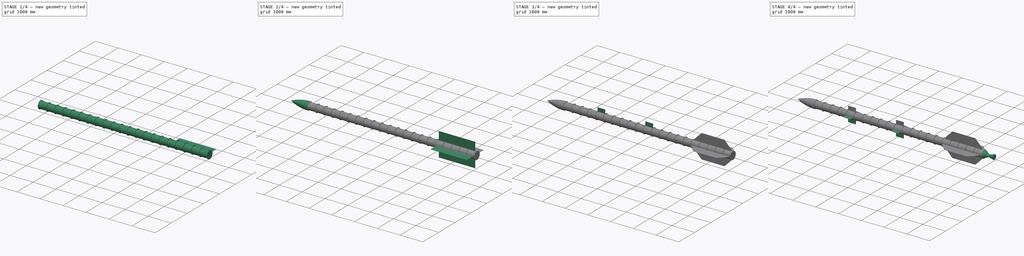
[diagram: build sequence overview — one tinted view per stage of 4, left to right]
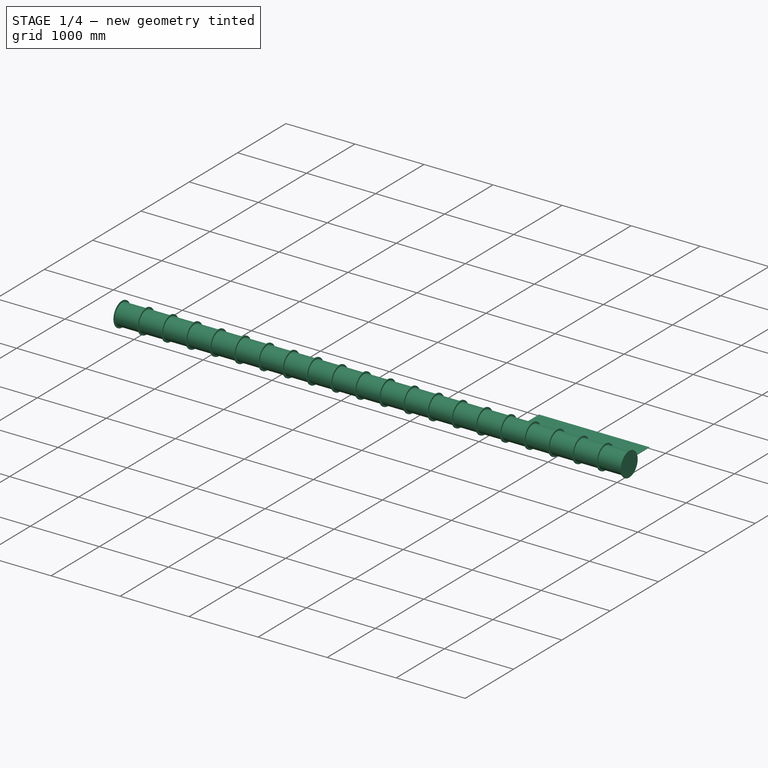
[diagram: stage 1 of 4 — iso view after this stage's code; geometry added in this stage tinted green]
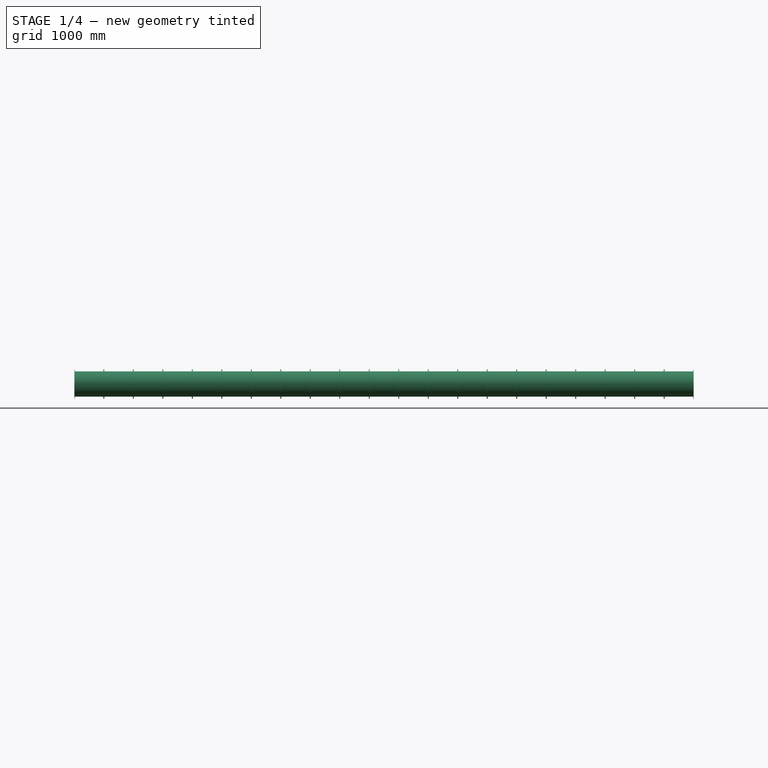
[diagram: stage 1 of 4 — front view after this stage's code; geometry added in this stage tinted green]
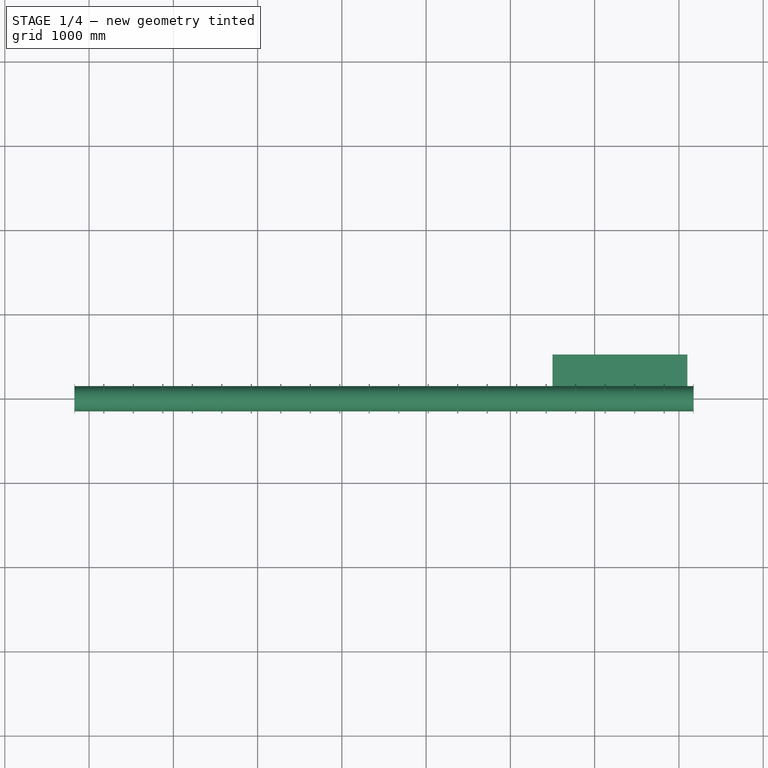
[diagram: stage 1 of 4 — top view after this stage's code; geometry added in this stage tinted green]
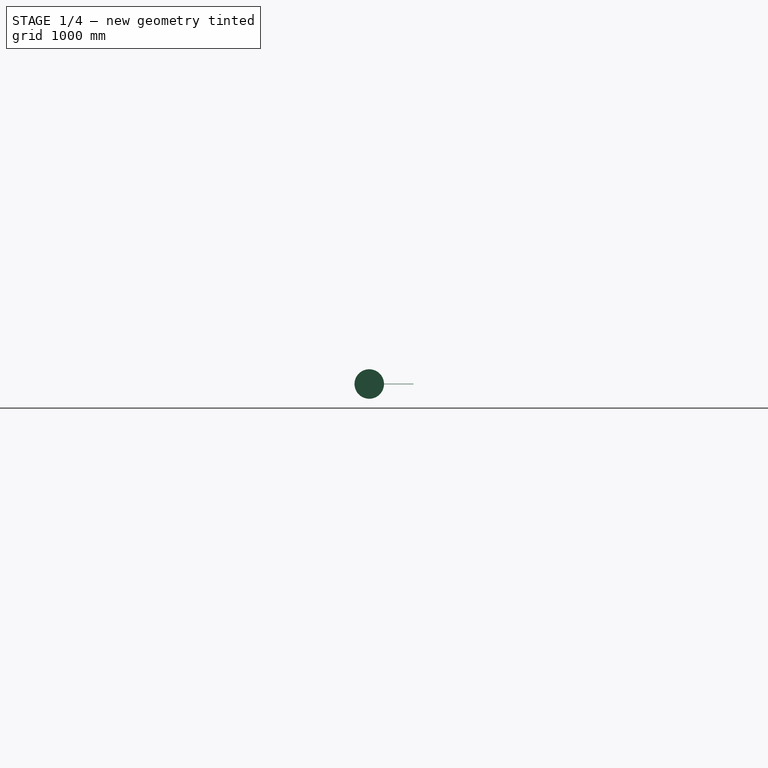
[diagram: stage 1 of 4 — right view after this stage's code; geometry added in this stage tinted green]
FCSTD DOCUMENT  (FreeCAD 0.18R16085 (Git))
Label: Body3
License: All rights reserved
LicenseURL: http://en.wikipedia.org/wiki/All_rights_reserved
objects: Sketcher::SketchObject×6, PartDesign::Revolution×3, Part::FeaturePython×2, Part::MultiFuse×2, PartDesign::Body×2, Part::Extrusion×1, Part::Chamfer×1, PartDesign::FeatureBase×1, PartDesign::Pad×1, PartDesign::PolarPattern×1, PartDesign::MultiTransform×1, PartDesign::Fillet×1
note: 26 computed .brp shape members not serialized (recipe doc carries the construction recipe); baked Part::Feature solids carry a one-line shape summary decoded from their .brp

FEATURE [Sketcher::SketchObject] Sketch
  MapMode = 5
  Support = -> [XY_Plane]
  sketch-geometry (8):
    g0: LineSegment StartX=-170 StartY=150 StartZ=0 EndX=170 EndY=150 EndZ=0
    g1: LineSegment StartX=170 StartY=150 StartZ=0 EndX=170 EndY=175 EndZ=0
    g2: LineSegment StartX=170 StartY=175 StartZ=0 EndX=175 EndY=175 EndZ=0
    g3: LineSegment StartX=175 StartY=175 StartZ=0 EndX=175 EndY=0 EndZ=0
    g4: LineSegment StartX=175 StartY=0 StartZ=0 EndX=-175 EndY=0 EndZ=0
    g5: LineSegment StartX=-175 StartY=0 StartZ=0 EndX=-175 EndY=175 EndZ=0
    g6: LineSegment StartX=-175 StartY=175 StartZ=0 EndX=-170 EndY=175 EndZ=0
    g7: LineSegment StartX=-170 StartY=175 StartZ=0 EndX=-170 EndY=150 EndZ=0
  constraints (23):
    c: Coincident(g1,g2)
    c: Coincident(g2,g3)
    c: Coincident(g3,g4)
    c: Coincident(g4,g5)
    c: Coincident(g5,g6)
    c: Coincident(g6,g7)
    c: Coincident(g7,g0)
    c: Coincident(g0,g1)
    c: Vertical(g1)
    c: Vertical(g3)
    c: Vertical(g5)
    c: Vertical(g7)
    c: Horizontal(g4)
    c: Horizontal(g2)
    c: Horizontal(g6)
    c: Equal(g2,g6)
    c: Symmetric(g0,g0,g-2)
    c: PointOnObject(g3,g-1)
    c: Distance(g-1,g0) = 150
    c: Distance(g4) = 350
    c: Distance(g0) = 340
    c: Distance(g3) = 175
    c: Equal(g3,g5)
FEATURE [PartDesign::Revolution] Revolution
  Angle = 360
  Axis = (1,0,0)
  Base = (0,0,0)
  Profile = -> Sketch
  ReferenceAxis = -> Sketch [H_Axis]
  Refine = true
FEATURE [Sketcher::SketchObject] Sketch002
  MapMode = 5
  Support = -> [XY_Plane]
  sketch-geometry (4):
    g0: LineSegment StartX=5500 StartY=525 StartZ=0 EndX=7100 EndY=525 EndZ=0
    g1: LineSegment StartX=7100 StartY=525 StartZ=0 EndX=7100 EndY=0 EndZ=0
    g2: LineSegment StartX=7100 StartY=0 StartZ=0 EndX=5500 EndY=0 EndZ=0
    g3: LineSegment StartX=5500 StartY=0 StartZ=0 EndX=5500 EndY=525 EndZ=0
  constraints (12):
    c: Coincident(g0,g1)
    c: Coincident(g1,g2)
    c: Coincident(g2,g3)
    c: Coincident(g3,g0)
    c: Horizontal(g0)
    c: Horizontal(g2)
    c: Vertical(g1)
    c: Vertical(g3)
    c: Distance(g1) = 525
    c: Distance(g0) = 1600
    c: PointOnObject(g1,g-1)
    c: DistanceX(g-2,g0) = 7100
FEATURE [Part::Extrusion] Extrude
  Base = -> Sketch002
  Dir = (0,0,1)
  DirMode = 2
  FaceMakerClass = Part::FaceMakerBullseye
  LengthFwd = 5
  LengthRev = 0
  Solid = true
  Symmetric = true
FEATURE [Part::FeaturePython] Array  # Draft array (typed FeaturePython)
  Angle = 360
  ArrayType = 0
  Axis = (0,0,1)
  Base = -> Revolution
  Center = (0,0,0)
  Fuse = true
  IntervalAxis = (0,0,0)
  IntervalX = (350,0,0)
  IntervalY = (0,1,0)
  IntervalZ = (0,0,1)
  NumberPolar = 1
  NumberX = 21
  NumberY = 1
  NumberZ = 1
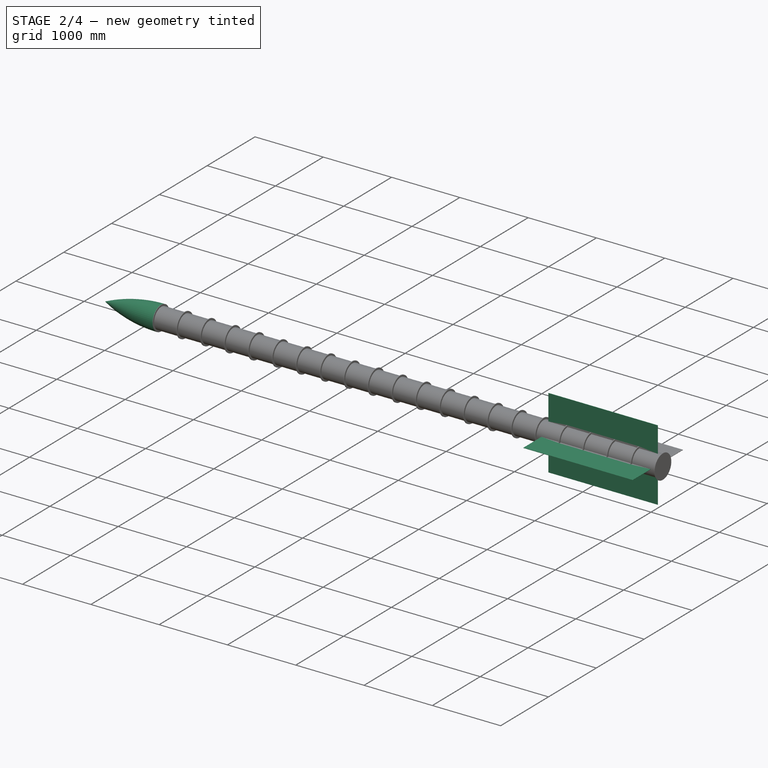
[diagram: stage 2 of 4 — iso view after this stage's code; geometry added in this stage tinted green]
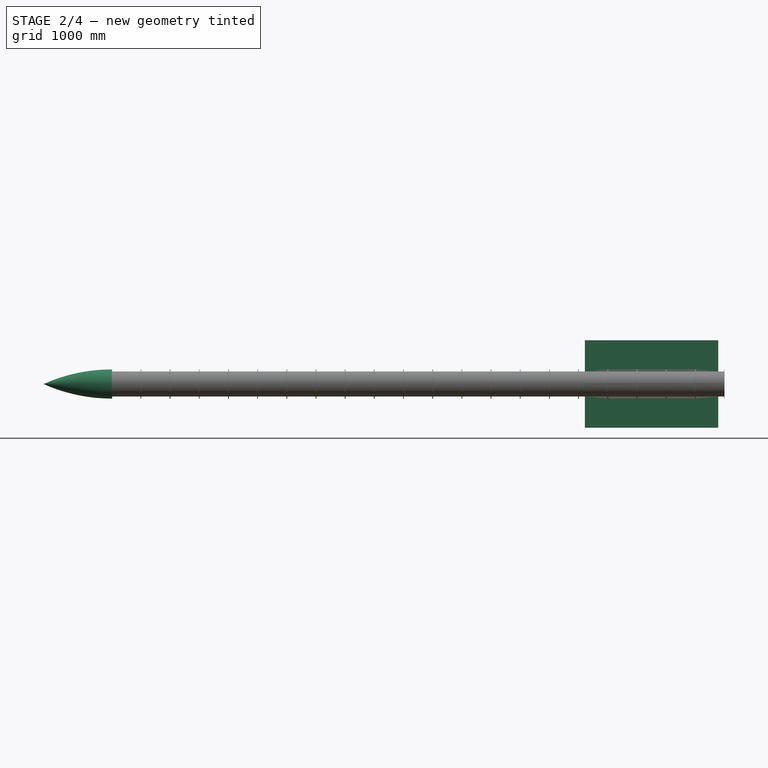
[diagram: stage 2 of 4 — front view after this stage's code; geometry added in this stage tinted green]
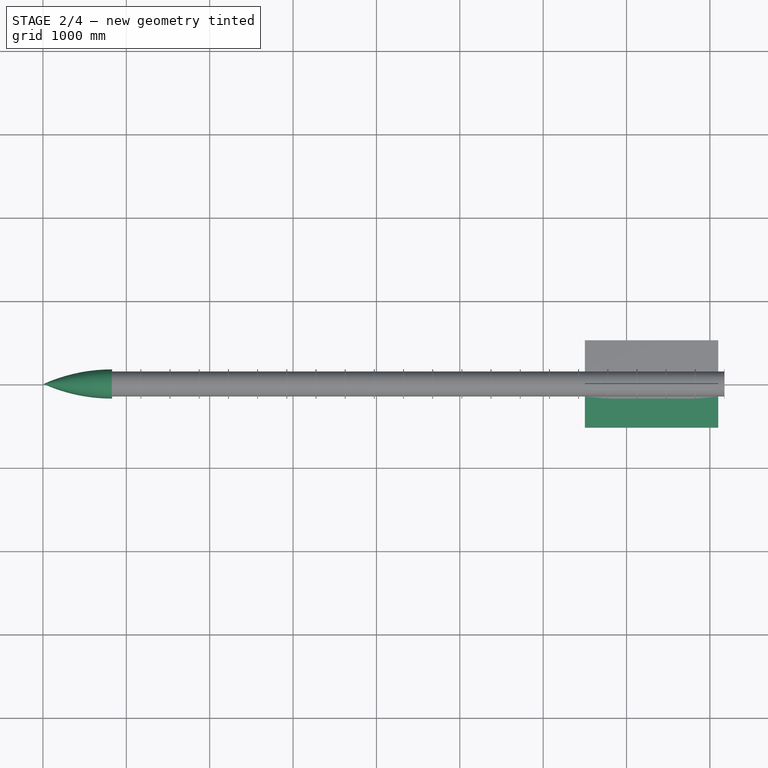
[diagram: stage 2 of 4 — top view after this stage's code; geometry added in this stage tinted green]
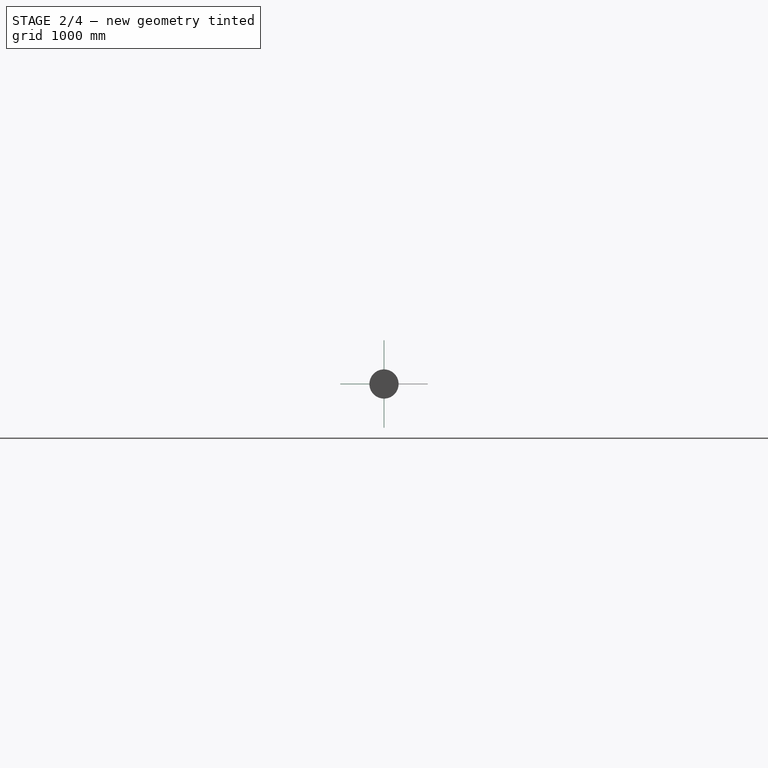
[diagram: stage 2 of 4 — right view after this stage's code; geometry added in this stage tinted green]
FEATURE [Sketcher::SketchObject] Sketch001
  MapMode = 5
  Support = -> [XY_Plane]
  sketch-geometry (4):
    g0: Circle [constr] CenterX=-175 CenterY=-1825 CenterZ=0 NormalX=0 NormalY=0 NormalZ=1 AngleXU=0 Radius=2000
    g1: ArcOfCircle CenterX=-175 CenterY=-1825 CenterZ=0 NormalX=0 NormalY=0 NormalZ=1 AngleXU=0 Radius=2000 StartAngle=1.5708 EndAngle=1.99224
    g2: LineSegment StartX=-175 StartY=175 StartZ=0 EndX=-175 EndY=0 EndZ=0
    g3: LineSegment StartX=-993.153 StartY=0 StartZ=0 EndX=-175 EndY=0 EndZ=0
  constraints (12):
    c: Radius(g0) = 2000
    c: DistanceX(g-2,g0) = -175
    c: DistanceY(g-1,g0) = -1825
    c: Equal(g1,g0)
    c: Coincident(g1,g0)
    c: PointOnObject(g1,g-1)
    c: Vertical(g2)
    c: Coincident(g2,g1)
    c: PointOnObject(g1,g2)
    c: PointOnObject(g2,g-1)
    c: Coincident(g3,g2)
    c: Coincident(g3,g1)
FEATURE [PartDesign::Revolution] Revolution001
  Angle = 360
  Axis = (1,0,0)
  Base = (0,0,0)
  BaseFeature = -> Revolution
  Profile = -> Sketch001
  ReferenceAxis = -> Sketch001 [H_Axis]
  Refine = true
FEATURE [Part::FeaturePython] Array001  # Draft array (typed FeaturePython)
  Angle = 360
  ArrayType = 1
  Axis = (1,0,0)
  Base = -> Extrude
  Center = (0,0,0)
  Fuse = true
  IntervalAxis = (0,0,0)
  IntervalX = (1,0,0)
  IntervalY = (0,1,0)
  IntervalZ = (0,0,1)
  NumberPolar = 4
  NumberX = 1
  NumberY = 1
  NumberZ = 1
FEATURE [Part::MultiFuse] Fusion
  Refine = true
  Shapes = -> [Array001,Array]
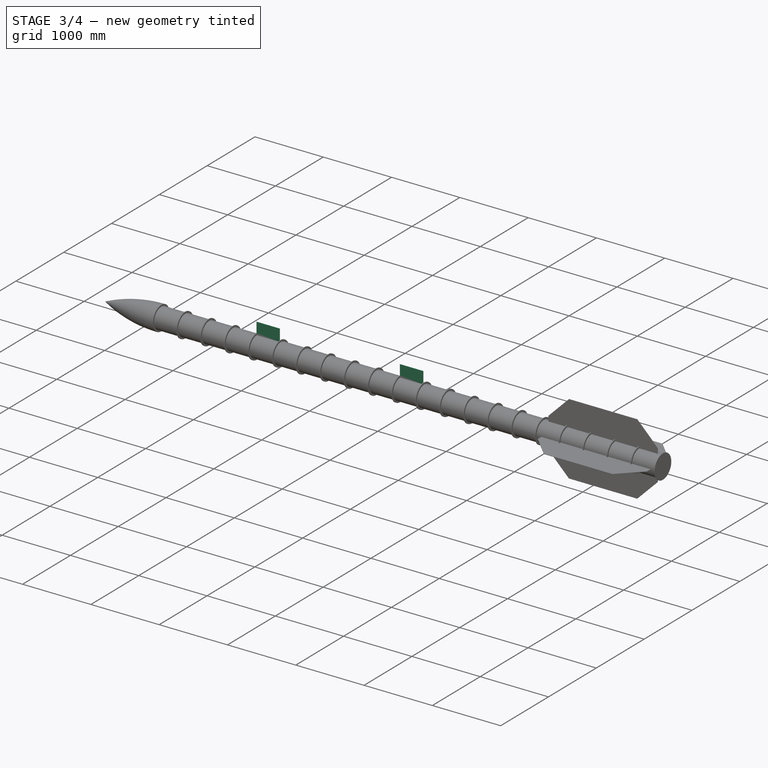
[diagram: stage 3 of 4 — iso view after this stage's code; geometry added in this stage tinted green]
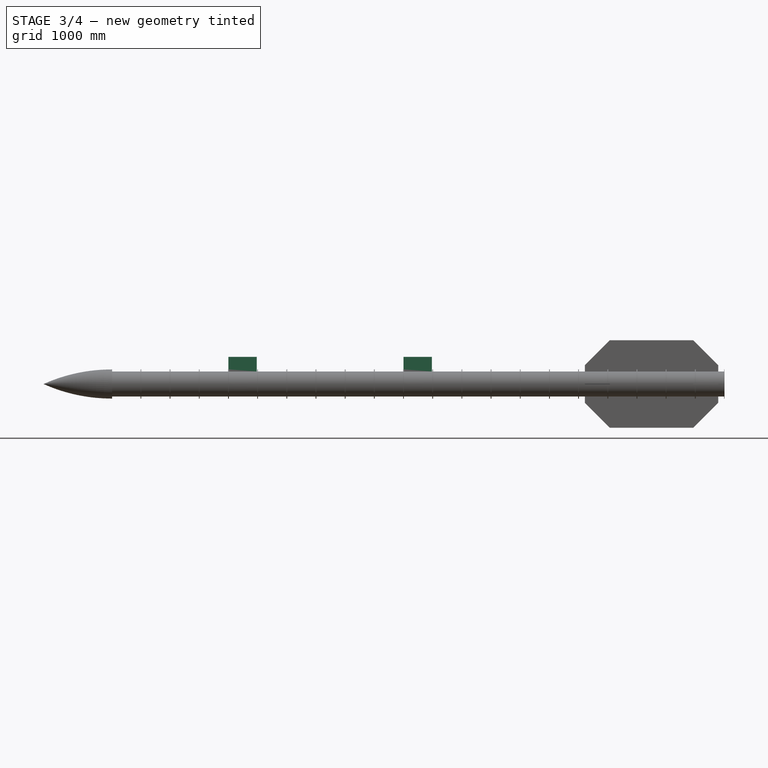
[diagram: stage 3 of 4 — front view after this stage's code; geometry added in this stage tinted green]
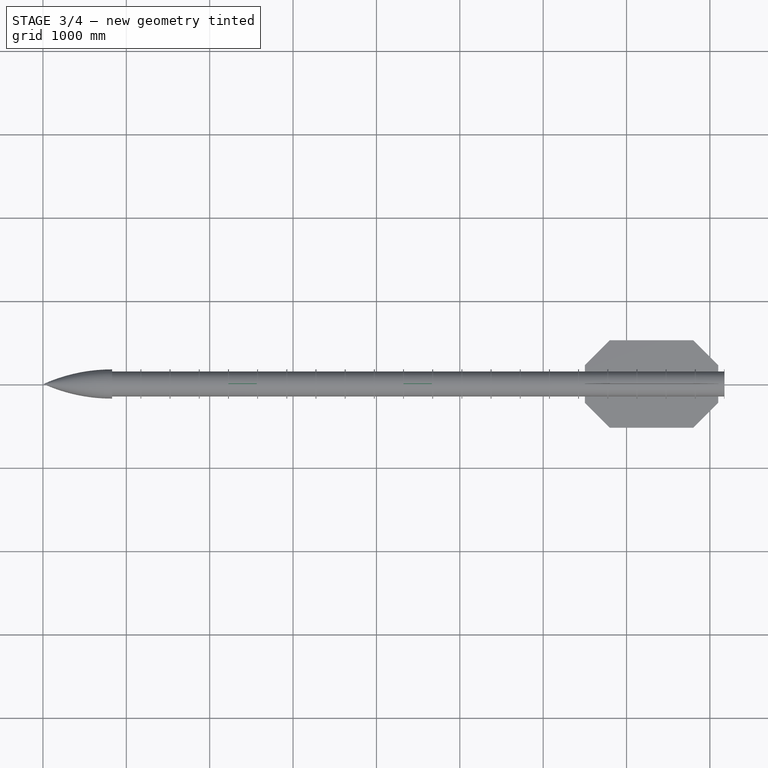
[diagram: stage 3 of 4 — top view after this stage's code; geometry added in this stage tinted green]
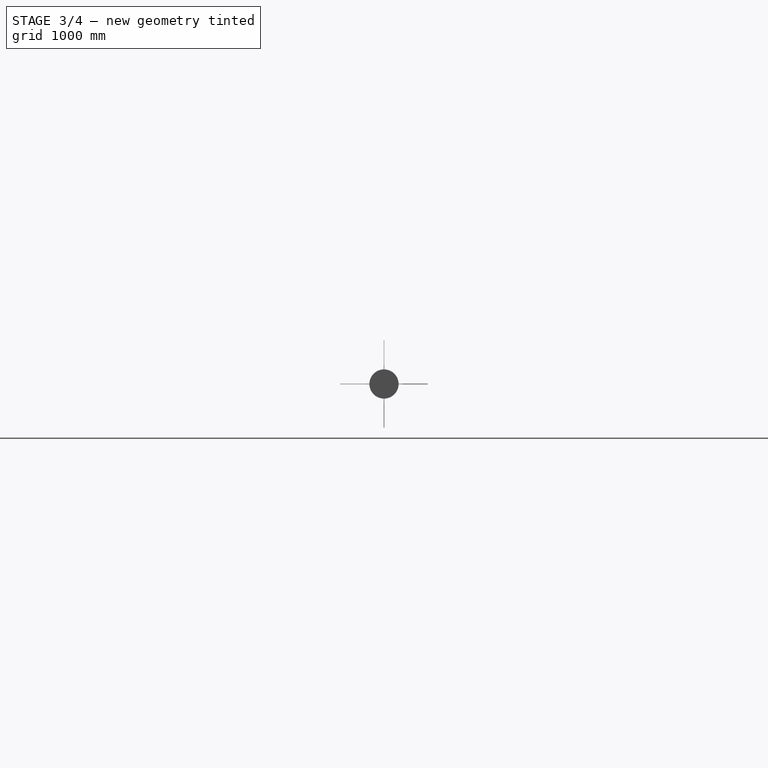
[diagram: stage 3 of 4 — right view after this stage's code; geometry added in this stage tinted green]
FEATURE [Sketcher::SketchObject] Sketch003
  MapMode = 5
  Support = -> [XY_Plane]
FEATURE [PartDesign::Body] Body
  Group = -> [Sketch,Revolution,Sketch001,Revolution001,Sketch002,Sketch003]
  Origin = -> Origin
  Tip = -> Revolution001
FEATURE [Part::MultiFuse] Fusion001
  Refine = true
  Shapes = -> [Body,Fusion]
FEATURE [Part::Chamfer] Chamfer
  Base = -> Fusion001
  Edges = 8 edges r=300: [Edge112,Edge152,Edge192,Edge232,Edge271,Edge296,Edge310,Edge324]
FEATURE [PartDesign::FeatureBase] BaseFeature
  BaseFeature = -> Chamfer
FEATURE [Sketcher::SketchObject] Sketch004
  MapMode = 5
  Placement = pos=(0,0,0) rot=(1,0,0;1.5708rad)
  Support = -> [XZ_Plane001]
  sketch-geometry (8):
    g0: LineSegment StartX=1225 StartY=325 StartZ=0 EndX=1565 EndY=325 EndZ=0
    g1: LineSegment StartX=1565 StartY=325 StartZ=0 EndX=1565 EndY=0 EndZ=0
    g2: LineSegment StartX=1565 StartY=0 StartZ=0 EndX=1225 EndY=-3.09e-14 EndZ=0
    g3: LineSegment StartX=1225 StartY=-3.09e-14 StartZ=0 EndX=1225 EndY=325 EndZ=0
    g4: LineSegment StartX=3325 StartY=325 StartZ=0 EndX=3665 EndY=325 EndZ=0
    g5: LineSegment StartX=3665 StartY=325 StartZ=0 EndX=3665 EndY=0 EndZ=0
    g6: LineSegment StartX=3665 StartY=0 StartZ=0 EndX=3325 EndY=1.07e-14 EndZ=0
    g7: LineSegment StartX=3325 StartY=1.07e-14 StartZ=0 EndX=3325 EndY=325 EndZ=0
  constraints (24):
    c: Coincident(g0,g1)
    c: Coincident(g1,g2)
    c: Coincident(g2,g3)
    c: Coincident(g3,g0)
    c: Horizontal(g0)
    c: Vertical(g1)
    c: Vertical(g3)
    c: Coincident(g4,g5)
    c: Coincident(g5,g6)
    c: Coincident(g6,g7)
    c: Coincident(g7,g4)
    c: Horizontal(g4)
    c: Vertical(g5)
    c: Vertical(g7)
    c: Equal(g4,g0)
    c: Equal(g1,g3)
    c: Equal(g3,g5)
    c: Equal(g5,g7)
    c: Distance(g4) = 340
    c: Distance(g5) = 325
    c: DistanceX(g-2,g2) = 1225
    c: DistanceX(g-2,g6) = 3325
    c: PointOnObject(g1,g-1)
    c: PointOnObject(g5,g-1)
FEATURE [PartDesign::Pad] Pad
  BaseFeature = -> BaseFeature
  Length = 5
  Length2 = 100
  Midplane = true
  Profile = -> Sketch004
  Refine = true
  Type = 0
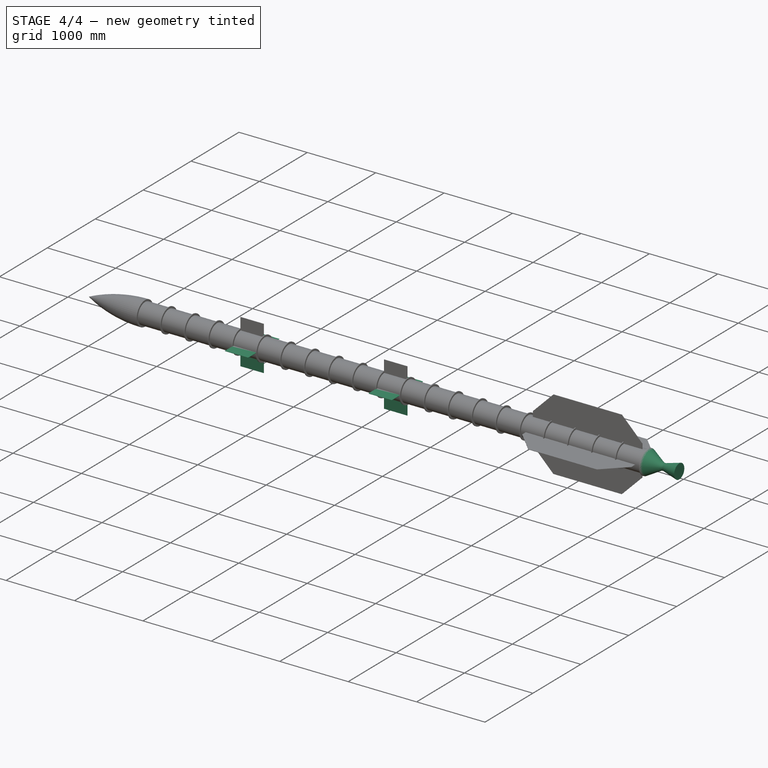
[diagram: stage 4 of 4 — iso view after this stage's code; geometry added in this stage tinted green]
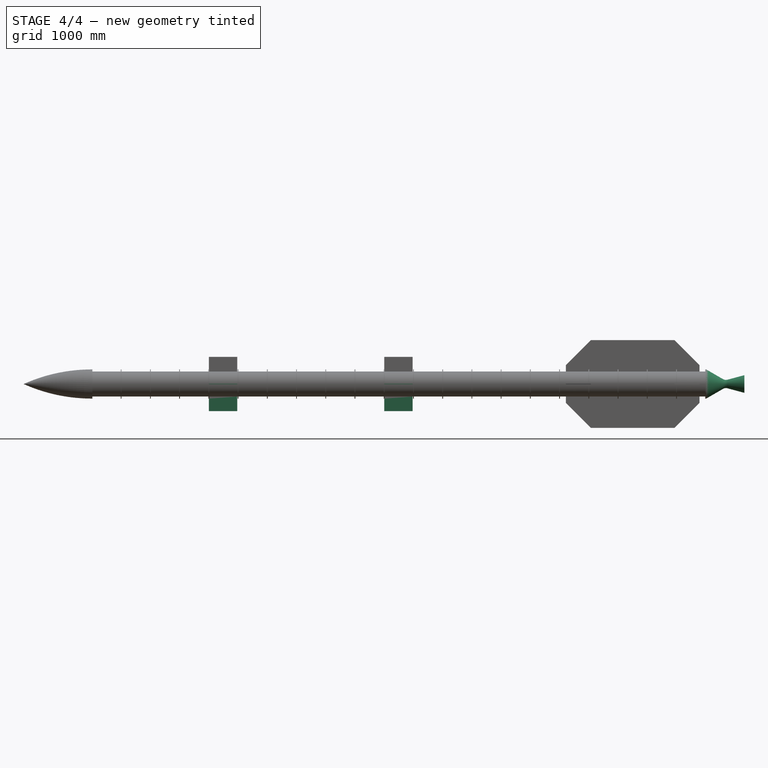
[diagram: stage 4 of 4 — front view after this stage's code; geometry added in this stage tinted green]
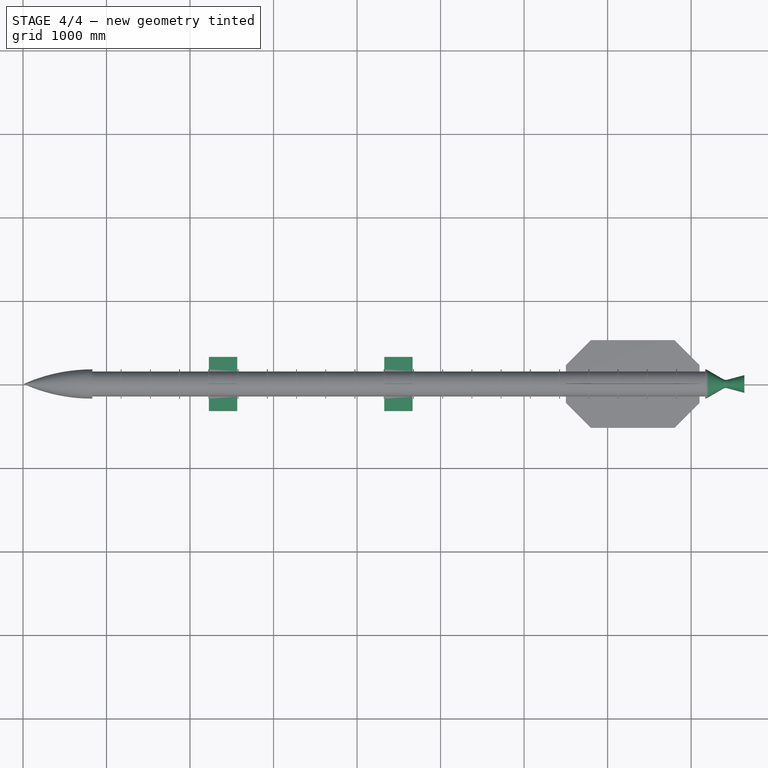
[diagram: stage 4 of 4 — top view after this stage's code; geometry added in this stage tinted green]
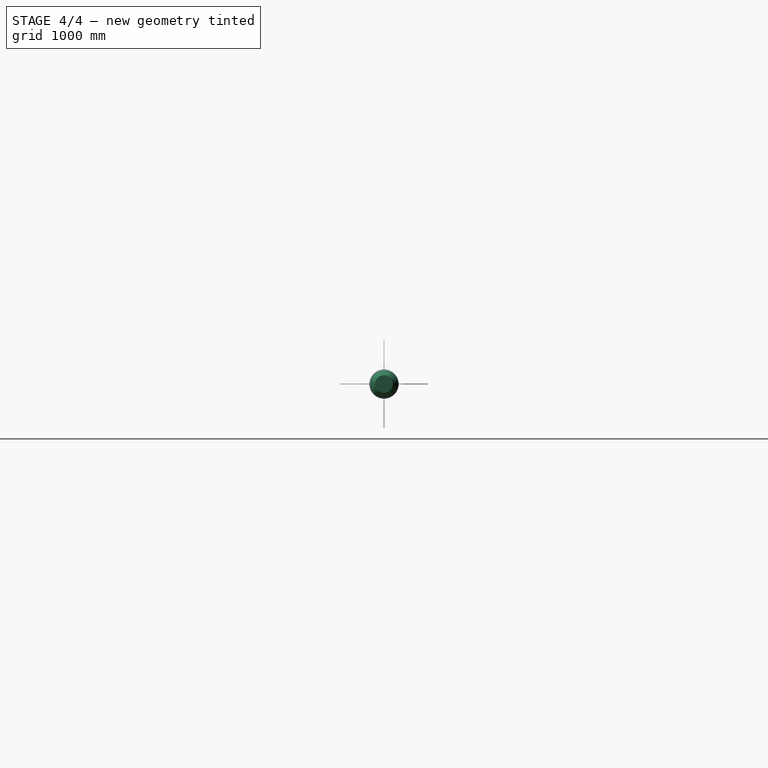
[diagram: stage 4 of 4 — right view after this stage's code; geometry added in this stage tinted green]
FEATURE [PartDesign::PolarPattern] PolarPattern
  Angle = 360
  Axis = -> Sketch004 [H_Axis]
  Occurrences = 4
  Refine = true
FEATURE [PartDesign::MultiTransform] MultiTransform
  BaseFeature = -> Pad
  Originals = -> [Pad]
  Refine = true
  Transformations = -> [PolarPattern]
FEATURE [Sketcher::SketchObject] Sketch005
  ExternalGeometry = -> [MultiTransform]
  MapMode = 5
  Support = -> [XY_Plane001]
  sketch-geometry (6):
    g0: LineSegment StartX=7175 StartY=175 StartZ=0 EndX=7175 EndY=0 EndZ=0
    g1: LineSegment StartX=7175 StartY=175 StartZ=0 EndX=7180 EndY=175 EndZ=0
    g2: LineSegment StartX=7180 StartY=175 StartZ=0 EndX=7406.9 EndY=44 EndZ=0
    g3: LineSegment StartX=7406.9 StartY=44 StartZ=0 EndX=7638.29 EndY=106 EndZ=0
    g4: LineSegment StartX=7638.29 StartY=106 StartZ=0 EndX=7638.29 EndY=0 EndZ=0
    g5: LineSegment StartX=7638.29 StartY=0 StartZ=0 EndX=7175 EndY=0 EndZ=0
  constraints (18):
    c: Coincident(g5,g0)
    c: Horizontal(g5)
    c: Coincident(g5,g4)
    c: Vertical(g4)
    c: Coincident(g4,g3)
    c: Coincident(g3,g2)
    c: Coincident(g2,g1)
    c: Horizontal(g1)
    c: Coincident(g1,g0)
    c: PointOnObject(g0,g-1)
    c: PointOnObject(g0,g-3)
    c: Vertical(g0)
    c: Distance(g1) = 5
    c: Angle(g2,g5) = 0.523599
    c: Distance(g0,g5) = 175
    c: Distance(g2,g5) = 44
    c: Angle(g5,g3) = 0.261799
    c: Distance(g4) = 106
FEATURE [PartDesign::Revolution] Revolution002
  Angle = 360
  Axis = (1,0,0)
  Base = (0,0,0)
  BaseFeature = -> MultiTransform
  Profile = -> Sketch005
  ReferenceAxis = -> Sketch005 [H_Axis]
  Refine = true
FEATURE [PartDesign::Fillet] Fillet
  Base = -> Revolution002 [Edge519]
  BaseFeature = -> Revolution002
  Radius = 70
FEATURE [PartDesign::Body] Body001
  BaseFeature = -> Chamfer
  Group = -> [BaseFeature,Sketch004,Pad,MultiTransform,PolarPattern,Sketch005,Revolution002,Fillet]
  Origin = -> Origin001
  Tip = -> Fillet
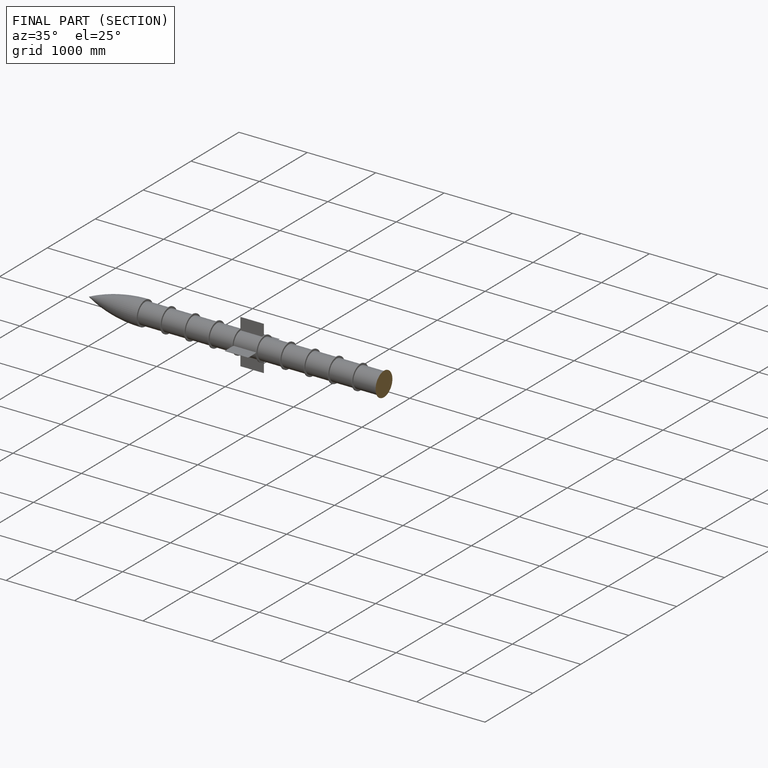
[diagram: finished part — half-section view (interior)]
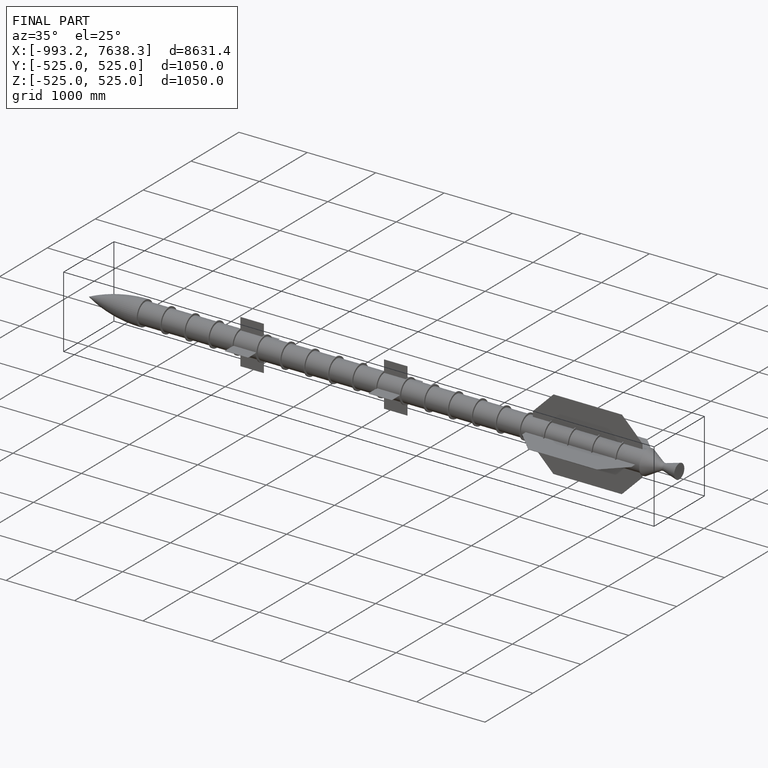
[diagram: finished part — iso view with bounding-box wireframe]
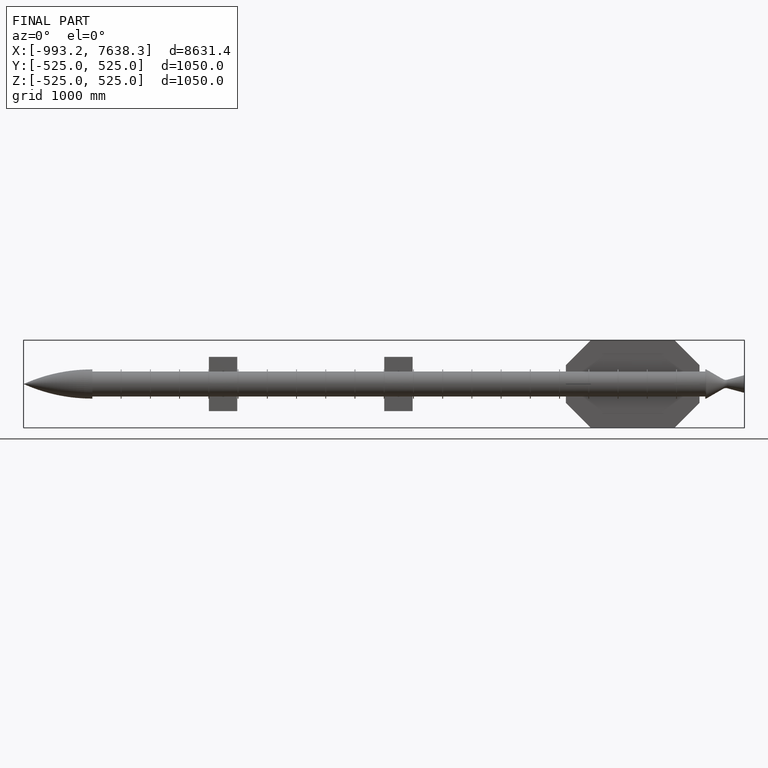
[diagram: finished part — front view with bounding-box wireframe]
